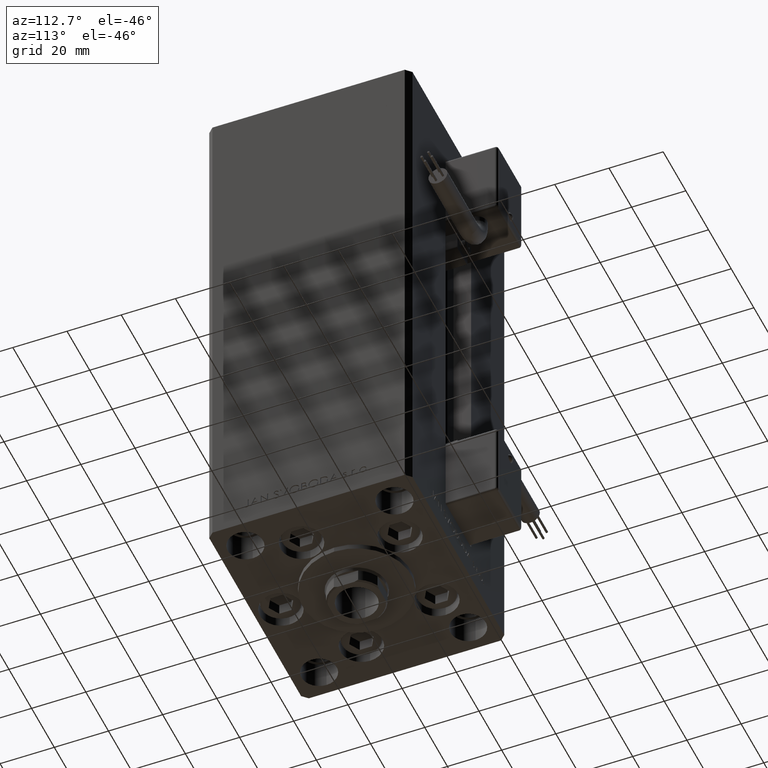
[diagram: clean part render]
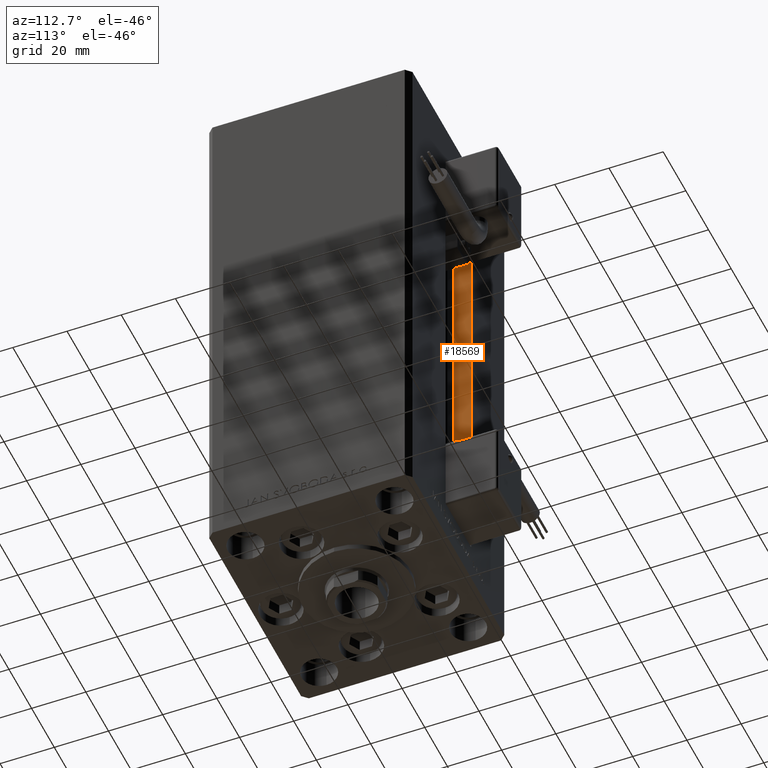
[diagram: same view with one face highlighted and labeled with its STEP entity id]
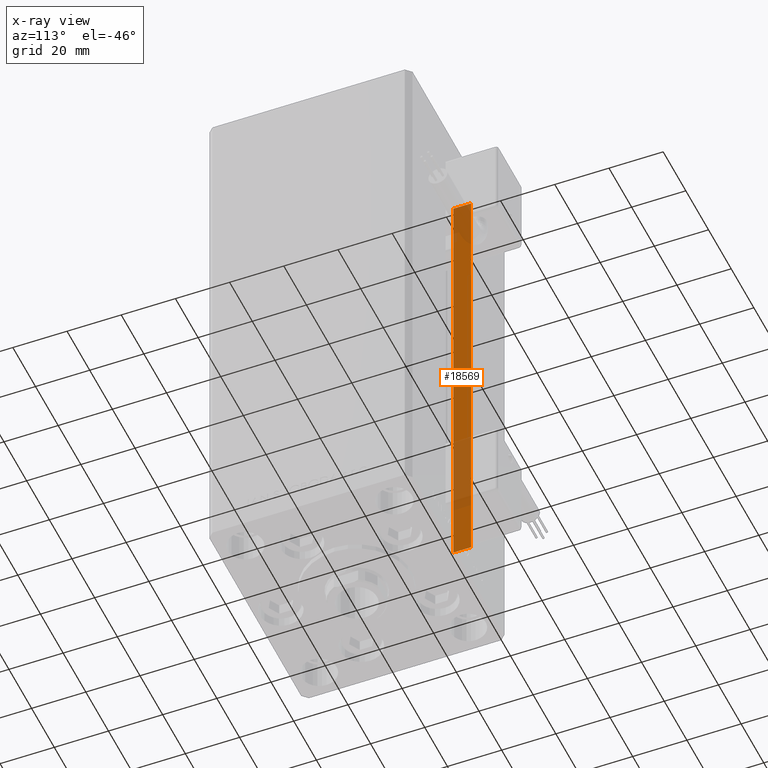
[diagram: x-ray of the same camera — body ghosted, the highlighted face saturated]
A machine part, auxiliary view. The second image highlights one B-rep face of the part: STEP entity #18569.
The next image is the same camera in x-ray: the body ghosted, the highlighted face saturated — about 30% of this face is hidden behind the body in this view.
In plain terms, the highlighted planar face has unit normal (-1, 0, 0).
Its self-contained STEP definition (entity closure, byte-faithful):
#746 = DIRECTION ( 'NONE',  ( -0.000000000000000000, -0.000000000000000000, 1.000000000000000000 ) ) ;
#2709 = EDGE_CURVE ( 'NONE', #32394, #21184, #11059, .T. ) ;
#2771 = CARTESIAN_POINT ( 'NONE',  ( -11.25000000000000000, 30.99999999999999289, 168.5000000000000000 ) ) ;
#4496 = CARTESIAN_POINT ( 'NONE',  ( -11.25000000000000000, 0.000000000000000000, 168.5000000000000000 ) ) ;
#9326 = EDGE_LOOP ( 'NONE', ( #23313, #29887, #18514, #27633 ) ) ;
#10568 = VERTEX_POINT ( 'NONE', #2771 ) ;
#10787 = DIRECTION ( 'NONE',  ( -0.000000000000000000, -1.000000000000000000, -0.000000000000000000 ) ) ;
#11059 = LINE ( 'NONE', #43561, #15172 ) ;
#11531 = LINE ( 'NONE', #27530, #48127 ) ;
#11621 = EDGE_CURVE ( 'NONE', #21184, #10568, #46041, .T. ) ;
#13218 = CARTESIAN_POINT ( 'NONE',  ( -11.25000000000000000, 30.99999999999999289, 0.000000000000000000 ) ) ;
#15024 = VERTEX_POINT ( 'NONE', #47672 ) ;
#15172 = VECTOR ( 'NONE', #10787, 1000.000000000000000 ) ;
#16133 = AXIS2_PLACEMENT_3D ( 'NONE', #34606, #30363, #45820 ) ;
#16503 = DIRECTION ( 'NONE',  ( 0.000000000000000000, 1.000000000000000000, 0.000000000000000000 ) ) ;
#17308 = DIRECTION ( 'NONE',  ( -0.000000000000000000, -0.000000000000000000, 1.000000000000000000 ) ) ;
#18514 = ORIENTED_EDGE ( 'NONE', *, *, #35787, .T. ) ;
#18569 = ADVANCED_FACE ( 'NONE', ( #46611 ), #22103, .F. ) ;
#19520 = CARTESIAN_POINT ( 'NONE',  ( -11.25000000000000000, 37.50000000000000000, 0.000000000000000000 ) ) ;
#20504 = LINE ( 'NONE', #4496, #34390 ) ;
#21184 = VERTEX_POINT ( 'NONE', #13218 ) ;
#22103 = PLANE ( 'NONE',  #16133 ) ;
#23313 = ORIENTED_EDGE ( 'NONE', *, *, #11621, .F. ) ;
#27530 = CARTESIAN_POINT ( 'NONE',  ( -11.25000000000000000, 37.50000000000000000, 0.000000000000000000 ) ) ;
#27633 = ORIENTED_EDGE ( 'NONE', *, *, #32880, .F. ) ;
#29887 = ORIENTED_EDGE ( 'NONE', *, *, #2709, .F. ) ;
#30363 = DIRECTION ( 'NONE',  ( -1.000000000000000000, 0.000000000000000000, 0.000000000000000000 ) ) ;
#32394 = VERTEX_POINT ( 'NONE', #19520 ) ;
#32549 = VECTOR ( 'NONE', #746, 1000.000000000000000 ) ;
#32880 = EDGE_CURVE ( 'NONE', #10568, #15024, #20504, .T. ) ;
#34390 = VECTOR ( 'NONE', #16503, 1000.000000000000000 ) ;
#34606 = CARTESIAN_POINT ( 'NONE',  ( -11.25000000000000000, 30.99999999999999289, 0.000000000000000000 ) ) ;
#35787 = EDGE_CURVE ( 'NONE', #32394, #15024, #11531, .T. ) ;
#37773 = CARTESIAN_POINT ( 'NONE',  ( -11.25000000000000000, 30.99999999999999289, 0.000000000000000000 ) ) ;
#43561 = CARTESIAN_POINT ( 'NONE',  ( -11.25000000000000000, 30.99999999999999289, 0.000000000000000000 ) ) ;
#45820 = DIRECTION ( 'NONE',  ( 0.000000000000000000, 0.000000000000000000, 1.000000000000000000 ) ) ;
#46041 = LINE ( 'NONE', #37773, #32549 ) ;
#46611 = FACE_OUTER_BOUND ( 'NONE', #9326, .T. ) ;
#47672 = CARTESIAN_POINT ( 'NONE',  ( -11.25000000000000000, 37.50000000000000000, 168.5000000000000000 ) ) ;
#48127 = VECTOR ( 'NONE', #17308, 1000.000000000000000 ) ;